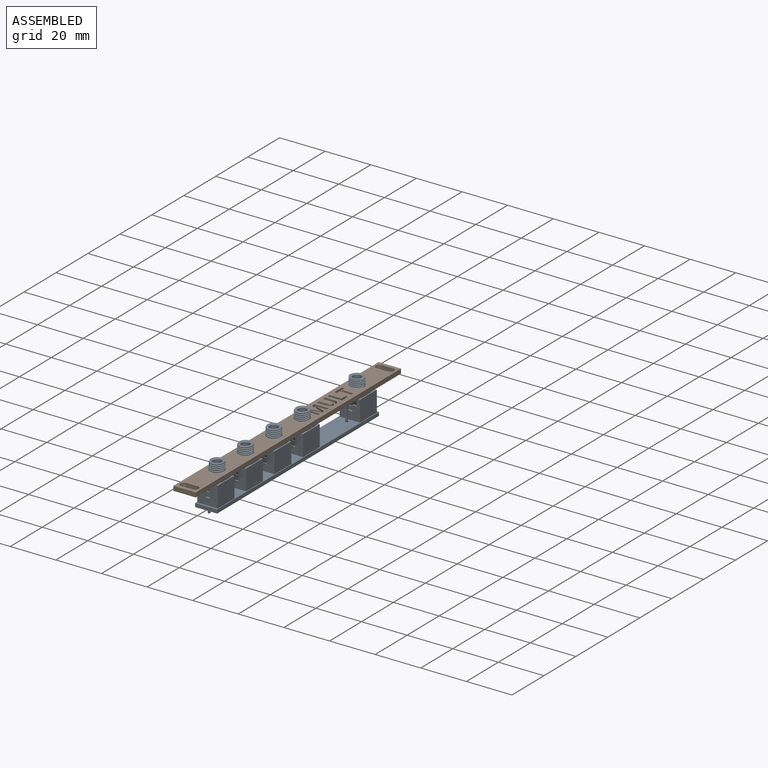
[diagram: assembled view]
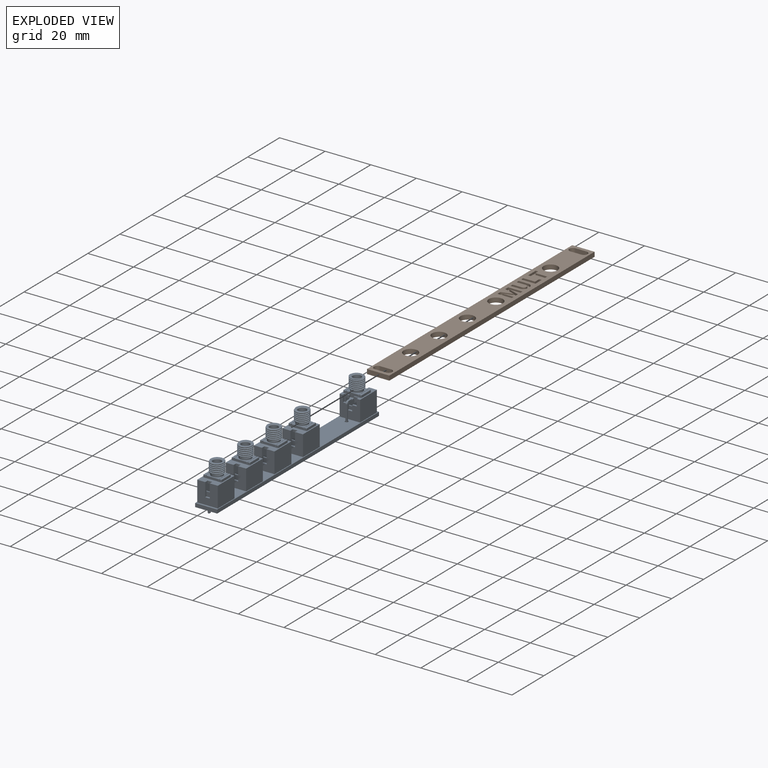
[diagram: exploded view]
GUIDED TOUR — FREECAD ASSEMBLY "Mult_Panel"

This assembly has 2 components, labeled P0..P1 below (a component is one placed body or linked part; the same part can appear more than once), held together by 0 modeled joints plus 1 derived contact edge. A joint is a constraint between two components; its type names the relative motion it leaves free:
  CONTACT — a derived adjacency edge — the two components touch in the source model (clearance under 2% of the assembly's diagonal); it is measured from the geometry, not a modeled constraint.
Axis/direction vectors are unit vectors and 'through' points are millimeter coordinates, both in the assembly's world frame.

MATES
  1. CONTACT "contact_0_1": P0 <-> P1, contact direction (0.000, 1.000, 0.000) through (3.56, -43.91, 11.99) mm (derived from contact, not a modeled constraint)

ASSEMBLY ORDER
  1. P0 — the base component [order heuristic]
  2. P1 [order heuristic]
Order-tag legend:
  [order heuristic] — this assembly is geometrically interlocked (no collision-free removal order exists), so components are listed in mate-graph order; insertion feasibility is not verified.

Of the 2 components, 1 carries a construction recipe — the FreeCAD feature program (sketches with constraints, then the solid features that consume them) that regenerates the part from scratch, quoted from this document or from the linked companion document it references; the rest are supplied as boundary geometry only. The tour below walks the components in assembly order: each is shown spotlighted twice — in the assembled view, then in the exploded view, where a leader line traces a displaced component back to its assembled socket (components that stay in place when exploded have no leader line; saturated green if recipe-attached, orange if geometry-only; every other component desaturated gray) — followed by its recipe or geometry summary and the mates that hold it.
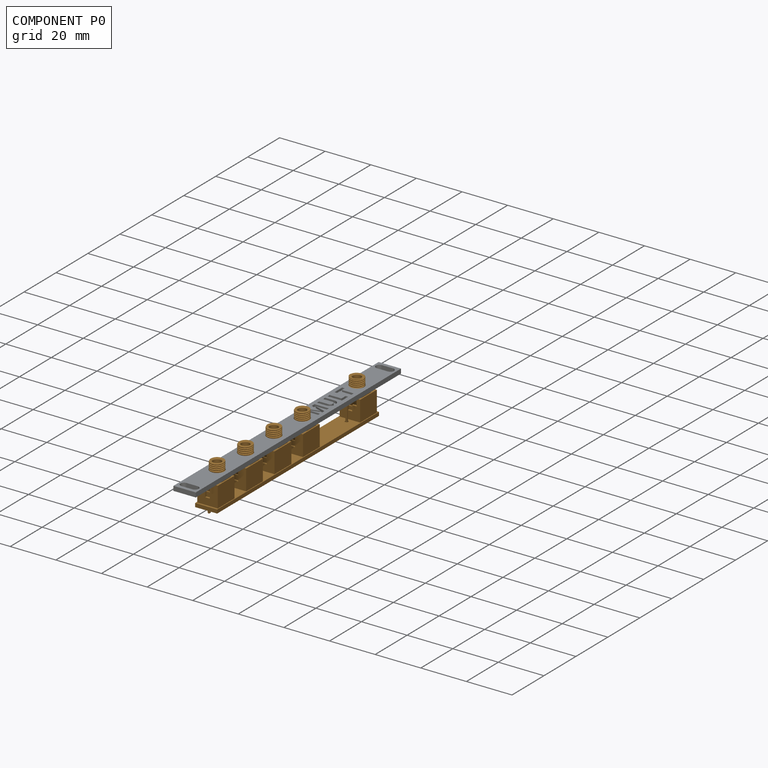
[diagram: component P0 — assembled]
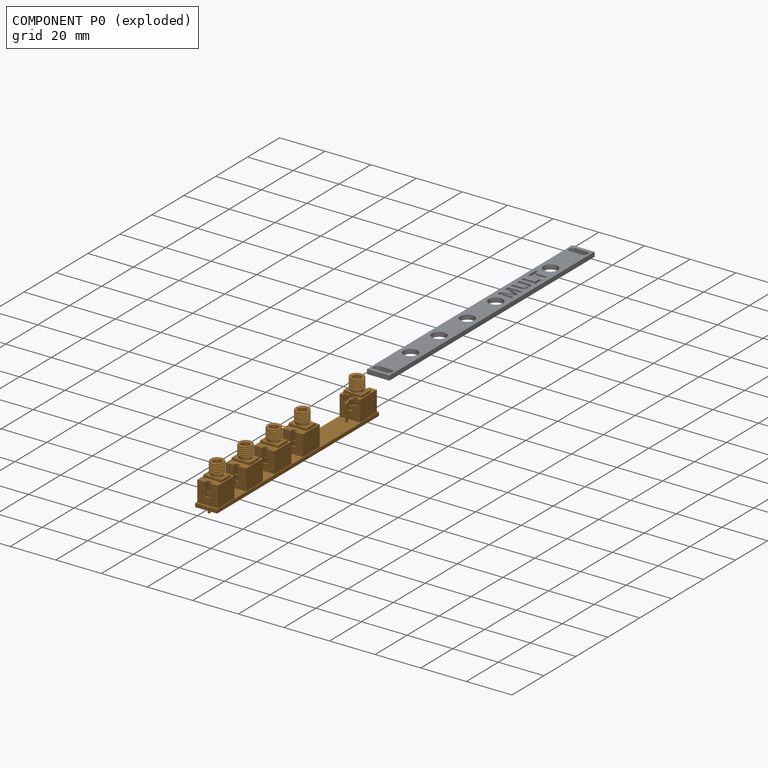
[diagram: component P0 — exploded]
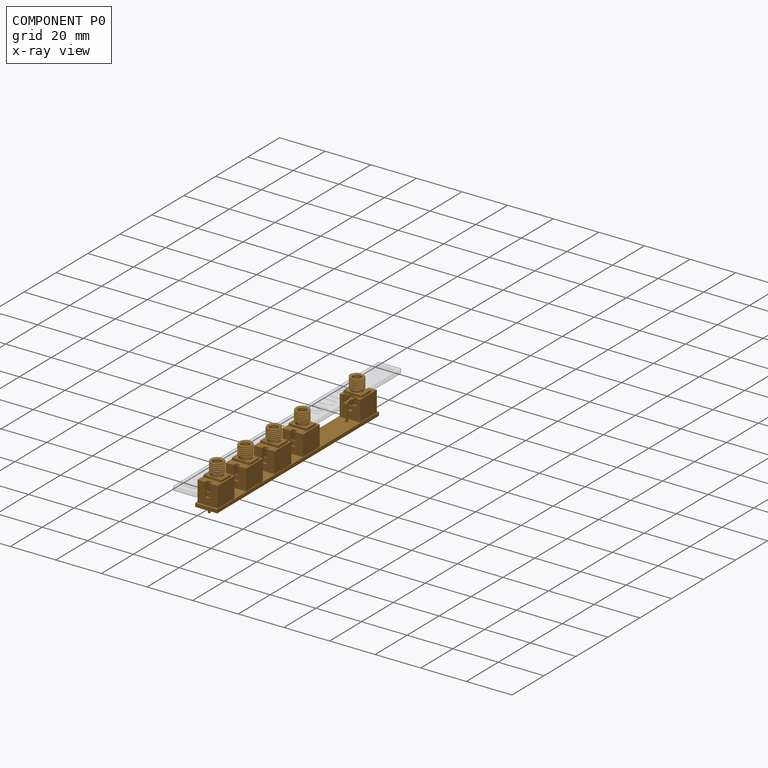
[diagram: component P0 — x-ray view]
COMPONENT P0 — geometry summary ("Mult_PCB"; no construction recipe available for this part):
  bounding box: 101.3 x 19.0 x 9.7 mm
  tessellated surface: 53,112 triangles
  volume: 4125 mm^3 (22% of its bounding box)
  symmetry: mirror-symmetric across its x mid-plane
Held by: resting contact with P1 (derived edge).
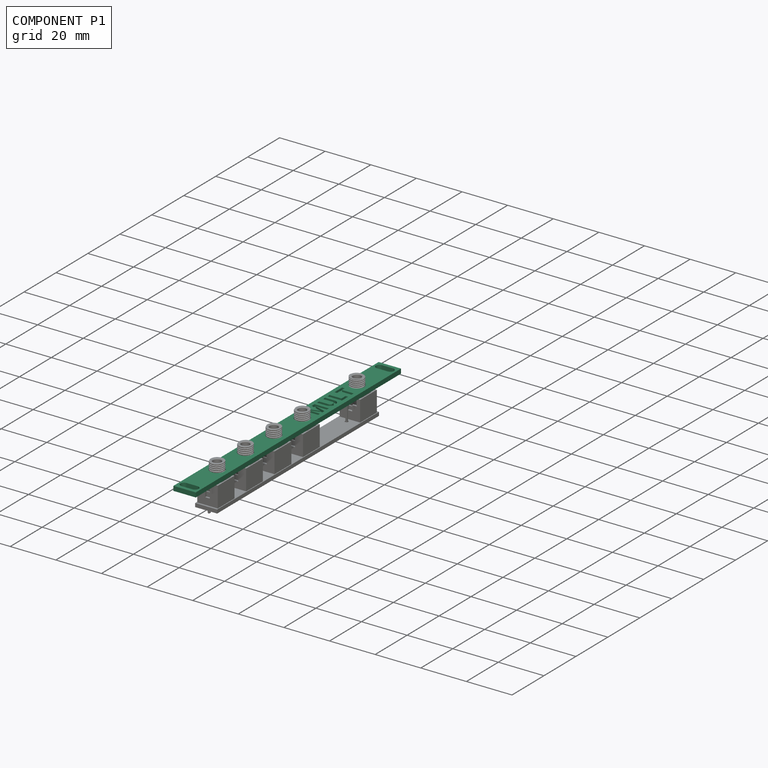
[diagram: component P1 — assembled]
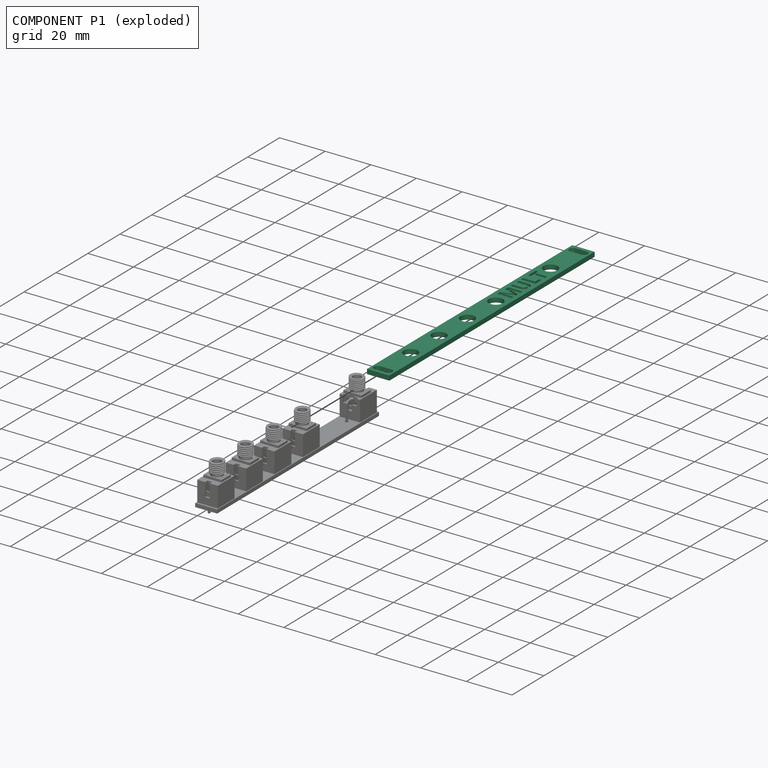
[diagram: component P1 — exploded]
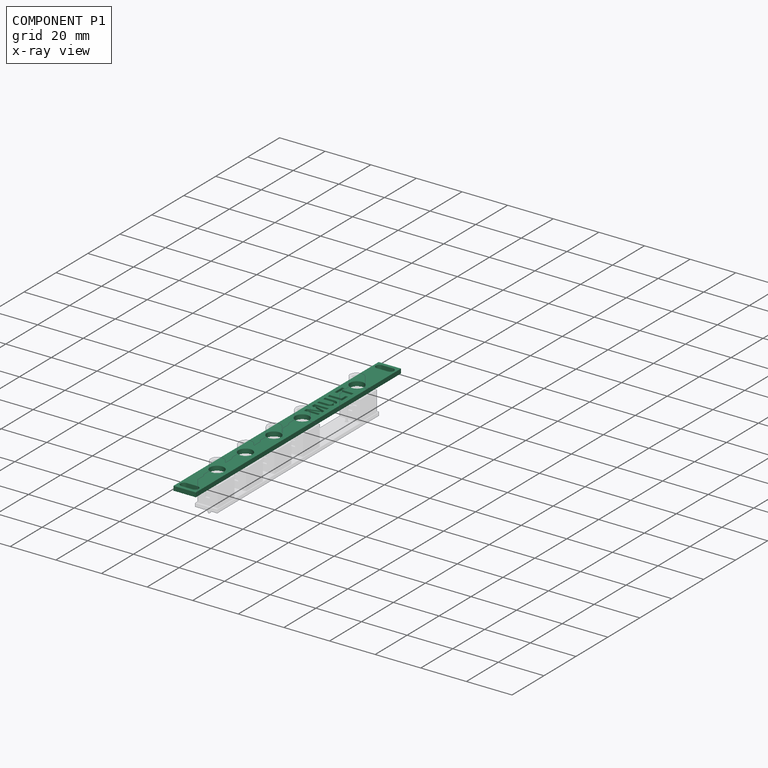
[diagram: component P1 — x-ray view]
COMPONENT P1 — recipe-attached ("Mult_Panel", modeled in this document).
Held by: resting contact with P0 (derived edge).
Construction recipe (the document's own serialized feature program — sketch geometry with constraints, then the solid features built on it; lengths are millimeters unless a unit is written):

FEATURE [Sketcher::SketchObject] Sketch
  AttachmentOffset = pos=(0,0,10) rot=(0,0,1;0rad)
  FullyConstrained = true
  MapMode = 5
  Placement = pos=(0,0,10) rot=(0,0,1;0rad)
  Support = -> [XY_Plane004]
  expr: Constraints[10] = Spreadsheet.panel_height
  expr: Constraints[11] = Spreadsheet.panel_height / 2 - Spreadsheet.pcb_height / 2
  expr: Constraints[18] = Spreadsheet.slot_offset
  expr: Constraints[19] = Spreadsheet.slot_width - Spreadsheet.slot_height
  expr: Constraints[20] = Spreadsheet.slot_height
  expr: Constraints[34] = Spreadsheet.slot_width - Spreadsheet.slot_height
  expr: Constraints[35] = Spreadsheet.slot_height
  expr: Constraints[36] = Spreadsheet.slot_offset
  expr: Constraints[44] = Spreadsheet.jack_diameter + Spreadsheet.jack_diameter_relief
  expr: Constraints[45] = Spreadsheet.jack_y_axis_offset
  expr: Constraints[46] = Spreadsheet.top_jack_x_axis_offset
  expr: Constraints[47] = Spreadsheet.jack_y_axis_offset
  expr: Constraints[48] = Spreadsheet.jack_diameter + Spreadsheet.jack_diameter_relief
  expr: Constraints[49] = Spreadsheet.bottom_jack_x_axis_offset
  expr: Constraints[50] = Spreadsheet.lower_jacks_distance
  expr: Constraints[57] = Spreadsheet.lower_jacks_distance
  expr: Constraints[58] = Spreadsheet.lower_jacks_distance
  expr: Constraints[9] = Spreadsheet.panel_width
  sketch-geometry (21):
    g0: LineSegment StartX=0 StartY=13.575 StartZ=0 EndX=9.8 EndY=13.575 EndZ=0
    g1: LineSegment StartX=9.8 StartY=13.575 StartZ=0 EndX=9.8 EndY=-114.925 EndZ=0
    g2: LineSegment StartX=9.8 StartY=-114.925 StartZ=0 EndX=0 EndY=-114.925 EndZ=0
    g3: LineSegment StartX=0 StartY=-114.925 StartZ=0 EndX=0 EndY=13.575 EndZ=0
    g4: ArcOfCircle CenterX=2.5 CenterY=10.475 CenterZ=0 NormalX=0 NormalY=0 NormalZ=1 AngleXU=0 Radius=1.6 StartAngle=1.5708 EndAngle=4.71239
    g5: ArcOfCircle CenterX=7.3 CenterY=10.475 CenterZ=0 NormalX=0 NormalY=0 NormalZ=1 AngleXU=0 Radius=1.6 StartAngle=4.71239 EndAngle=7.85398
    g6: LineSegment StartX=2.5 StartY=8.875 StartZ=0 EndX=7.3 EndY=8.875 EndZ=0
    g7: LineSegment StartX=7.3 StartY=12.075 StartZ=0 EndX=2.5 EndY=12.075 EndZ=0
    g8: LineSegment StartX=2.5 StartY=10.475 StartZ=0 EndX=0 EndY=10.475 EndZ=0
    g9: LineSegment StartX=7.3 StartY=10.475 StartZ=0 EndX=9.8 EndY=10.475 EndZ=0
    g10: ArcOfCircle CenterX=2.5 CenterY=-111.825 CenterZ=0 NormalX=0 NormalY=0 NormalZ=1 AngleXU=0 Radius=1.6 StartAngle=1.5708 EndAngle=4.71239
    g11: ArcOfCircle CenterX=7.3 CenterY=-111.825 CenterZ=0 NormalX=0 NormalY=0 NormalZ=1 AngleXU=0 Radius=1.6 StartAngle=4.71239 EndAngle=7.85398
    g12: LineSegment StartX=2.5 StartY=-113.425 StartZ=0 EndX=7.3 EndY=-113.425 EndZ=0
    g13: LineSegment StartX=7.3 StartY=-110.225 StartZ=0 EndX=2.5 EndY=-110.225 EndZ=0
    g14: LineSegment StartX=7.3 StartY=-111.825 StartZ=0 EndX=9.8 EndY=-111.825 EndZ=0
    g15: LineSegment StartX=2.5 StartY=-111.825 StartZ=0 EndX=0 EndY=-111.825 EndZ=0
    g16: Circle CenterX=4.826 CenterY=-6.858 CenterZ=0 NormalX=0 NormalY=0 NormalZ=1 AngleXU=0 Radius=3.1
    g17: Circle CenterX=4.826 CenterY=-94.468 CenterZ=0 NormalX=0 NormalY=0 NormalZ=1 AngleXU=0 Radius=3.1
    g18: Circle CenterX=4.826 CenterY=-76.688 CenterZ=0 NormalX=0 NormalY=0 NormalZ=1 AngleXU=0 Radius=3.1
    g19: Circle CenterX=4.826 CenterY=-58.908 CenterZ=0 NormalX=0 NormalY=0 NormalZ=1 AngleXU=0 Radius=3.1
    g20: Circle CenterX=4.826 CenterY=-41.128 CenterZ=0 NormalX=0 NormalY=0 NormalZ=1 AngleXU=0 Radius=3.1
  constraints (59):
    c: Coincident(g0,g1)
    c: Coincident(g1,g2)
    c: Coincident(g2,g3)
    c: Coincident(g3,g0)
    c: Horizontal(g0)
    c: Horizontal(g2)
    c: Vertical(g1)
    c: Vertical(g3)
    c: PointOnObject(g0,g-2)
    c: DistanceX(g2,g2) = 9.8
    c: DistanceY(g1,g1) = 128.5
    c: DistanceY(g-1,g0) = 13.575
    c: Tangent(g4,g6) = -1.5708
    c: Tangent(g6,g5) = -1.5708
    c: Tangent(g5,g7) = -1.5708
    c: Tangent(g7,g4) = -1.5708
    c: Equal(g4,g5)
    c: Horizontal(g6)
    c: DistanceY(g5,g0) = 3.1
    c: DistanceX(g4,g5) = 4.8
    c: DistanceY(g5,g5) = 3.2
    c: Coincident(g8,g4)
    c: PointOnObject(g8,g3)
    c: Horizontal(g8)
    c: Coincident(g9,g5)
    c: PointOnObject(g9,g1)
    c: Horizontal(g9)
    c: Equal(g9,g8)
    c: Tangent(g10,g12) = -1.5708
    c: Tangent(g12,g11) = -1.5708
    c: Tangent(g11,g13) = -1.5708
    c: Tangent(g13,g10) = -1.5708
    c: Equal(g10,g11)
    c: Horizontal(g12)
    c: DistanceX(g10,g11) = 4.8
    c: DistanceY(g11,g11) = 3.2
    c: DistanceY(g1,g11) = 3.1
    c: Coincident(g14,g11)
    c: PointOnObject(g14,g1)
    c: Horizontal(g14)
    c: Coincident(g15,g10)
    c: PointOnObject(g15,g3)
    c: Horizontal(g15)
    c: Equal(g15,g14)
    c: Diameter(g16) = 6.2
    c: DistanceX(g-1,g16) = 4.826
    c: DistanceY(g16,g-1) = 6.858
    c: DistanceX(g-1,g17) = 4.826
    c: Diameter(g17) = 6.2
    c: DistanceY(g17,g-1) = 94.468
    c: DistanceY(g17,g18) = 17.78
    c: Equal(g18,g19)
    c: Equal(g19,g20)
    c: Equal(g20,g17)
    c: Vertical(g17,g18)
    c: Vertical(g19,g20)
    c: Vertical(g20,g18)
    c: DistanceY(g18,g19) = 17.78
    c: DistanceY(g19,g20) = 17.78
FEATURE [PartDesign::Pad] Pad
  Direction = (0,0,1)
  Length = 2
  Length2 = 10
  Profile = -> Sketch
  ReferenceAxis = -> Sketch [N_Axis]
  Type = 0
  expr: Length = Spreadsheet.panel_thickness
FEATURE [Part::Part2DObjectPython] ShapeString  # Draft 2D object (typed FeaturePython)
  FontFile = <userpath>/Downloads/Open_Sans/static/OpenSans/OpenSans-Bold.ttf
  MakeFace = true
  Placement = pos=(7.98,-36.5,11) rot=(0,0,1;1.5708rad)
  Size = 8
  String = MULT
  Tracking = 0
FEATURE [PartDesign::Pocket] Pocket
  BaseFeature = -> Pad
  Direction = (0,0,-1)
  Length = 0
  Length2 = 5
  Profile = -> ShapeString
  ReferenceAxis = -> ShapeString [N_Axis]
  Type = 3
  UpToFace = -> Pad [Face19]
FEATURE [PartDesign::Body] Body  label="Mult_Panel"
  Group = -> [Sketch,Pad,ShapeString,Pocket]
  Origin = -> Origin004
  Tip = -> Pocket
PROVENANCE & LICENSES
Assembly and component geometry: a FreeCAD (.FCStd) document from a public repository crawl; components, placements and joints were extracted with FreeCAD and each solid tessellated.
Construction recipes: the document's own serialized feature recipes (and, for linked parts, the recipes of companion documents from the same project).
License: as declared in the source repository (recorded in the dataset sidecar).
Joints: native FreeCAD joints and A2plus constraints are mapped to standard mate types; edges marked 'derived from contact' connect touching components and are measured from the geometry, not modeled.
Verification: 1 of this assembly's 2 components carries a construction recipe (1 from this document itself); the rest are geometry-only. Every component's tessellation passed the extraction mesh gates (mesh-volume checksum against the B-rep where available, bounding-box inflation <= 2%).
Renders: orthographic iso camera (az 35 / el 25); the floor grid conveys scale (grid pitch printed in each image; no ruler). In the exploded view each component is displaced by its stored offset vector: the offsets alone carry the explosion direction (mate normal/axis signs are not orientation cues and do not encode it), and separation distances are assigned per mate-chain, not proportionally to assembly-order depth.
